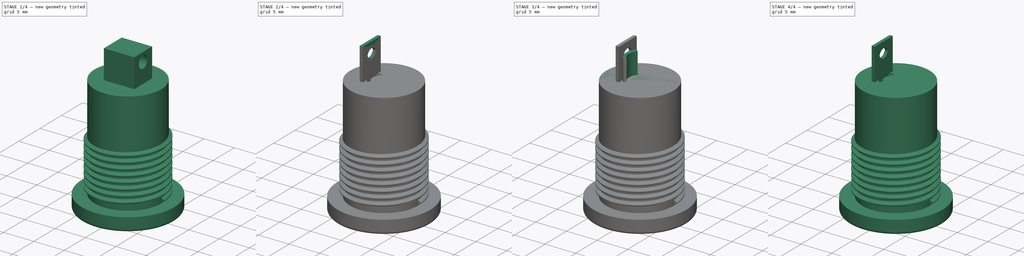
[diagram: build sequence overview — one tinted view per stage of 4, left to right]
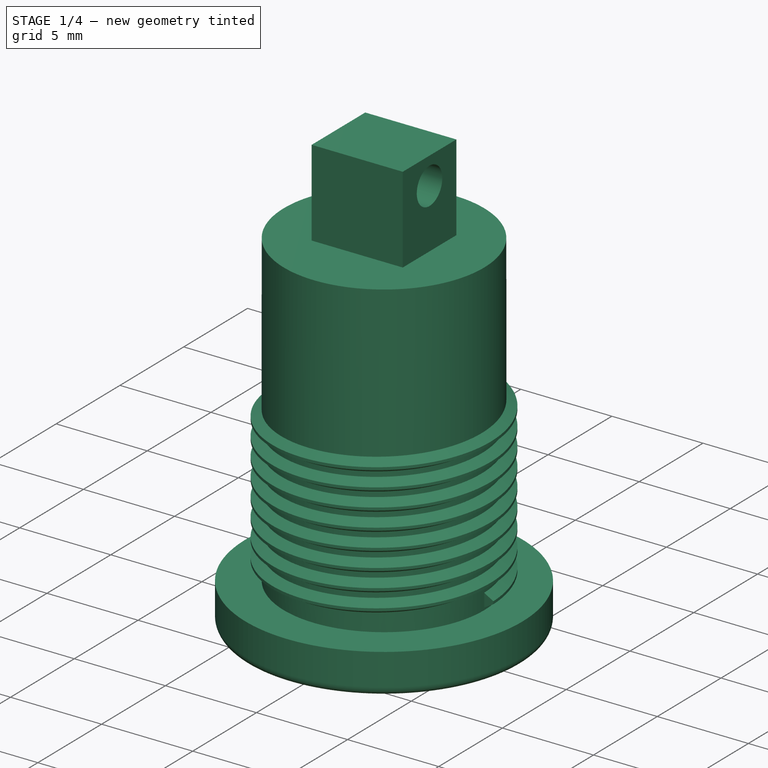
[diagram: stage 1 of 4 — iso view after this stage's code; geometry added in this stage tinted green]
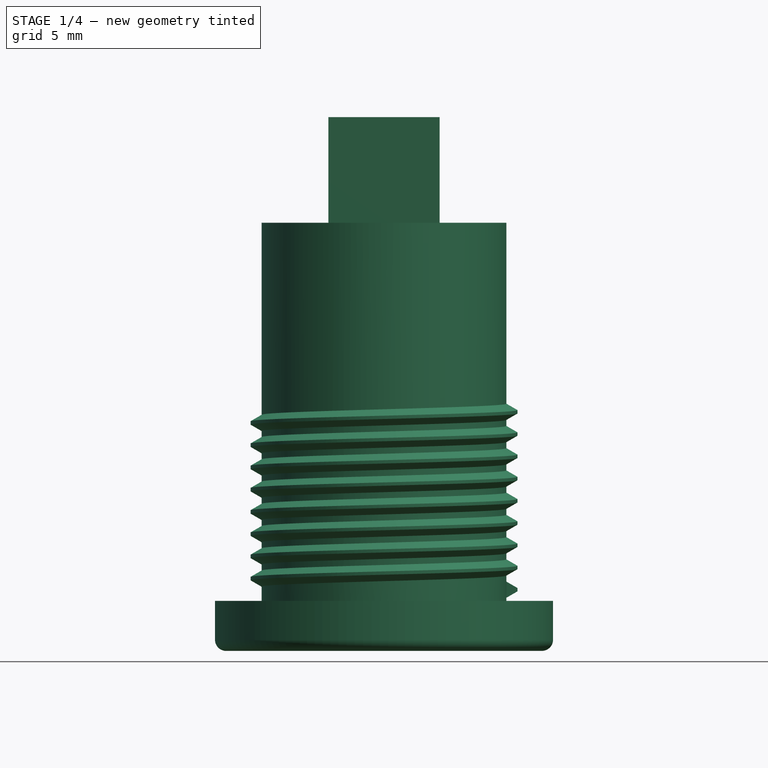
[diagram: stage 1 of 4 — front view after this stage's code; geometry added in this stage tinted green]
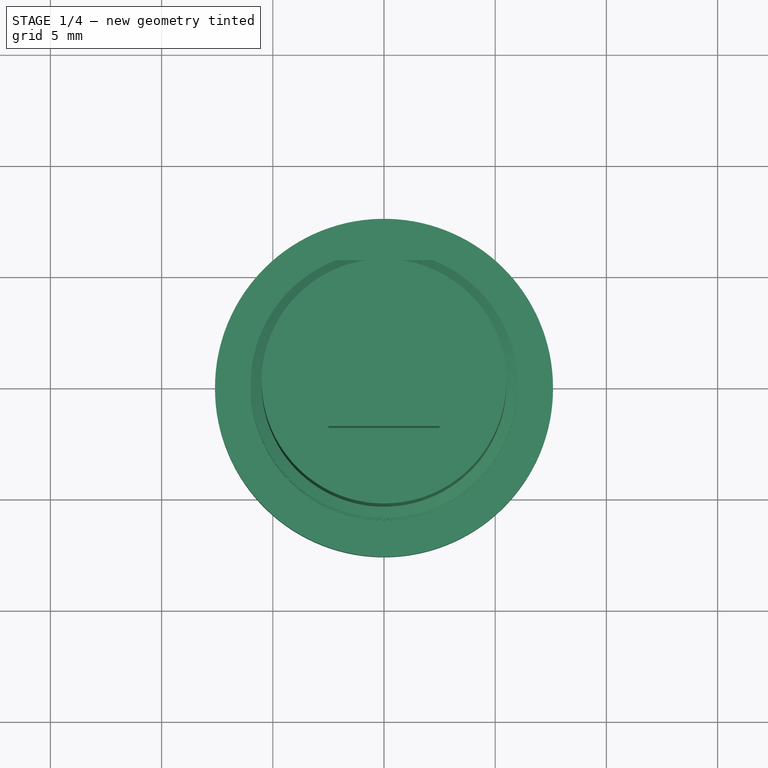
[diagram: stage 1 of 4 — top view after this stage's code; geometry added in this stage tinted green]
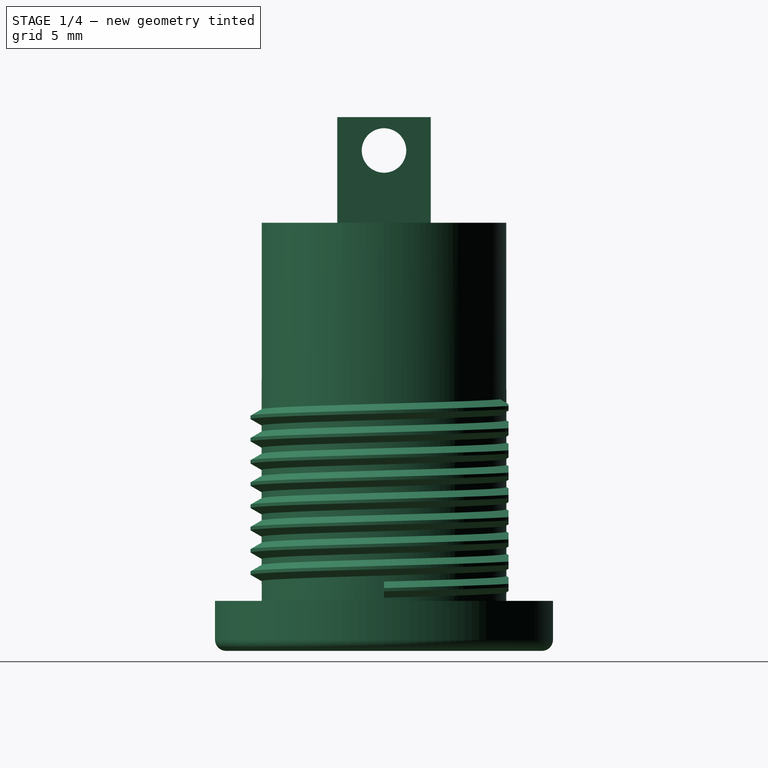
[diagram: stage 1 of 4 — right view after this stage's code; geometry added in this stage tinted green]
FCSTD DOCUMENT  (FreeCAD 0.15R4671 (Git))
Label: HBS
License: All rights reserved
LicenseURL: http://en.wikipedia.org/wiki/All_rights_reserved
objects: Sketcher::SketchObject×5, App::FeaturePython×4, Part::Cut×3, Drawing::FeatureViewPart×3, PartDesign::Revolution×2, Part::Box×2, Part::MultiFuse×2, PartDesign::Pad×2, App::DocumentObjectGroup×2, Part::Feature×2, Drawing::FeatureViewPython×2, Part::Helix×1, Part::Sweep×1, Part::Compound×1, Drawing::FeaturePage×1
note: 25 computed .brp shape members not serialized (recipe doc carries the construction recipe); baked Part::Feature solids carry a one-line shape summary decoded from their .brp

FEATURE [Sketcher::SketchObject] Sketch004
  Placement = pos=(0,0,0) rot=(0.57735,0.57735,0.57735;2.0944rad)
  sketch-geometry (9):
    g0: LineSegment StartX=1.5 StartY=15 StartZ=0 EndX=-1.5 EndY=15 EndZ=0
    g1: LineSegment StartX=-1.5 StartY=15 StartZ=0 EndX=-1.5 EndY=16 EndZ=0
    g2: LineSegment StartX=-1.5 StartY=16 StartZ=0 EndX=-2.1 EndY=16 EndZ=0
    g3: LineSegment StartX=-2.1 StartY=16 StartZ=0 EndX=-2.1 EndY=21.25 EndZ=0
    g4: LineSegment StartX=-2.1 StartY=21.25 StartZ=0 EndX=2.1 EndY=21.25 EndZ=0
    g5: LineSegment StartX=2.1 StartY=21.25 StartZ=0 EndX=2.1 EndY=16 EndZ=0
    g6: LineSegment StartX=2.1 StartY=16 StartZ=0 EndX=1.5 EndY=16 EndZ=0
    g7: LineSegment StartX=1.5 StartY=16 StartZ=0 EndX=1.5 EndY=15 EndZ=0
    g8: Circle CenterX=0 CenterY=19.75 CenterZ=0 NormalX=0 NormalY=0 NormalZ=1 Radius=1
  constraints (27):
    c: Horizontal(g0)
    c: Coincident(g0,g1)
    c: Vertical(g1)
    c: Coincident(g1,g2)
    c: Coincident(g2,g3)
    c: Vertical(g3)
    c: Coincident(g3,g4)
    c: Horizontal(g4)
    c: Coincident(g4,g5)
    c: Vertical(g5)
    c: Coincident(g5,g6)
    c: Horizontal(g6)
    c: Coincident(g6,g7)
    c: Coincident(g7,g0)
    c: DistanceY(g-1,g0) = 15
    c: Vertical(g7)
    c: PointOnObject(g8,g-2)
    c: Symmetric(g3,g4,g-2)
    c: Symmetric(g0,g0,g-2)
    c: Horizontal(g2)
    c: DistanceY(g6,g0) = -1
    c: DistanceY(g4,g5) = -5.25
    c: Equal(g3,g5)
    c: DistanceX(g3,g4) = 4.2
    c: Radius(g8) = 1
    c: DistanceY(g4,g8) = -1.5
    c: DistanceX(g0,g0) = -3
FEATURE [Sketcher::SketchObject] Sketch005
  Placement = pos=(0,0,0) rot=(1,0,0;1.5708rad)
  sketch-geometry (4):
    g0: LineSegment StartX=2 StartY=0 StartZ=0 EndX=2 EndY=15 EndZ=0
    g1: LineSegment StartX=2 StartY=15 StartZ=0 EndX=2.5 EndY=15 EndZ=0
    g2: LineSegment StartX=2.5 StartY=15 StartZ=0 EndX=2.5 EndY=0 EndZ=0
    g3: LineSegment StartX=2.5 StartY=0 StartZ=0 EndX=2 EndY=0 EndZ=0
  constraints (12):
    c: PointOnObject(g0,g-1)
    c: Vertical(g0)
    c: Coincident(g0,g1)
    c: Horizontal(g1)
    c: Coincident(g1,g2)
    c: Vertical(g2)
    c: Coincident(g2,g3)
    c: Coincident(g3,g0)
    c: Horizontal(g3)
    c: DistanceY(g1,g2) = -15
    c: DistanceX(g0,g1) = 0.5
    c: DistanceX(g-1,g0) = 2
FEATURE [PartDesign::Revolution] Revolution001  label="Tubo"
  Angle = 355
  Axis = (0,0,1)
  Base = (0,0,0)
  Placement = pos=(0,0,0) rot=(1,0,0;1.5708rad)
  ReferenceAxis = -> Sketch005 [V_Axis]
  Reversed = true
  Sketch = -> Sketch005
FEATURE [PartDesign::Pad] Pad001  label="Lengüeta"
  Length = 5
  Length2 = 100
  Midplane = true
  Placement = pos=(0,0,0) rot=(0.57735,0.57735,0.57735;2.0944rad)
  Sketch = -> Sketch004
  Type = 0
FEATURE [App::FeaturePython] Dimension  # Draft dimension (typed FeaturePython)
  Dimline = (11.8708,0,-0.669971)
  Direction = (0,0,0)
  Distance = 17
  End = (7.6,0,-0.5)
  Normal = (0,-1,0)
  Start = (7.6,0,16.5)
FEATURE [App::FeaturePython] Dimension001  # Draft dimension (typed FeaturePython)
  Dimline = (11.8696,0,-1.51157)
  Direction = (0,0,0)
  Distance = 2.25
  End = (7.6,0,-2.75)
  Normal = (0,-1,0)
  Start = (7.6,0,-0.5)
FEATURE [App::FeaturePython] Dimension002  # Draft dimension (typed FeaturePython)
  Dimline = (4.46714,1.30853e-06,21.9534)
  Direction = (0,0,0)
  Distance = 12.0065
  End = (6,-1.55762e-07,7.85564)
  Normal = (0,-1,5.9605e-08)
  Start = (-6.00647,-1.55762e-07,7.85564)
FEATURE [App::DocumentObjectGroup] Group  label="Cotas_z"
  Group = -> [Dimension,Dimension001,Dimension002]
FEATURE [Part::Feature] Cut001001  label="Cuerpo001"
  shape: bbox 17.88 x 17.56 x 19.25 mm, 71 faces (baked)
FEATURE [Part::Feature] Cut002001  label="Inserto"
  shape: bbox 5 x 5 x 21.25 mm, 19 faces (baked)
FEATURE [Part::Compound] Compound  label="Borne"
  Links = -> [Cut001001,Cut002001]
FEATURE [App::FeaturePython] Dimension003  # Draft dimension (typed FeaturePython)
  Dimline = (-3.66503,2.66715,0)
  Direction = (0,0,0)
  Distance = 4
  End = (-1.61712,1.17683,0)
  LinkedGeometry = -> [Cut002001]
  Normal = (0,0,-1)
  Start = (1.61712,-1.17683,0)
  Support = -> Cut002001
FEATURE [App::DocumentObjectGroup] Group001  label="Cota_inserto"
  Group = -> [Dimension003]
FEATURE [Drawing::FeatureViewPart] Ortho  label="Ortho_0_0"
  Direction = (0,0,1)
  HiddenWidth = 0.15
  LineWidth = 0.5
  Rotation = 0
  Scale = 2
  ShowHiddenLines = false
  ShowSmoothLines = false
  Source = -> Compound
  Tolerance = 0.05
  ViewResult = <blob: 6901 chars omitted>
  Visible = true
  X = 208.933
  Y = 50.3914
FEATURE [Drawing::FeatureViewPart] Ortho001  label="Ortho_0_-1"
  Direction = (0,-1,0)
  HiddenWidth = 0.15
  LineWidth = 0.5
  Rotation = 90
  Scale = 2
  ShowHiddenLines = false
  ShowSmoothLines = false
  Source = -> Compound
  Tolerance = 0.05
  ViewResult = <blob: 19564 chars omitted>
  Visible = true
  X = 208.933
  Y = 133.283
FEATURE [Drawing::FeatureViewPart] Ortho002  label="Ortho_-1_-1"
  Direction = (0.57735,-0.57735,-0.57735)
  HiddenWidth = 0.15
  LineWidth = 0.5
  Rotation = -60
  Scale = 2
  ShowHiddenLines = false
  ShowSmoothLines = false
  Source = -> Compound
  Tolerance = 0.05
  ViewResult = <blob: 11910 chars omitted>
  Visible = true
  X = 119.948
  Y = 107.23
FEATURE [Drawing::FeatureViewPython] ViewGroup  # drawing view (typed FeaturePython)
  Direction = (0,-1,0)
  FillStyle = 0
  FontSize = 12
  LineStyle = 0
  LineWidth = 0.35
  Rotation = 90
  Scale = 2
  Source = -> Group
  ViewResult = <blob: 3244 chars omitted>
  Visible = true
  X = 208.93
  Y = 133.28
FEATURE [Drawing::FeatureViewPython] ViewGroup001  # drawing view (typed FeaturePython)
  Direction = (0.58,-0.58,-0.58)
  FillStyle = 0
  FontSize = 12
  LineStyle = 0
  LineWidth = 0.35
  Rotation = -60
  Scale = 2
  Source = -> Group001
  ViewResult = <g id="ViewGroup001" transform="rotate(-60.0,119.95,107.23) translate(119.95,107.23) scale(2.0,-2.0)"><path d="M -1.14347707223 -0.30068793468 L -1.14347707223 -0.30068793468 L 1.14347707223 0.30068793468 L 1.14347707223 0.30068793468" fill="none" stroke="#0000ff" stroke-width="0.175 px" style="stroke-width:0.175;stroke-miterlimit:4;stroke-dasharray:none" freecad:basepoint1="-1.14347707223 -0.30068793468" freecad:basepoint2="1.14347707223 0.30068793468" freecad:dimpoint="-1.14347707223 -0.30068793468"/>\n<path transform="rotate(14.7329184638,-1.14347707223,-0.30068793468) translate(-1.14347707223,-0.30068793468) scale(0.666666666667,0.666666666667)" freecad:skip="1" fill="#0000ff" stroke="none" style="stroke-miterlimit:4;stroke-dasharray:none" d="M 0 0 L 4 1 L 4 -1 Z"/>\n<path transform="rotate(194.732918464,1.14347707223,0.30068793468) translate(1.14347707223,0.30068793468) scale(0.666666666667,0.666666666667)" freecad:skip="1" fill="#0000ff" stroke="none" style="stroke-miterlimit:4;stroke-dasharray:none" d="M 0 0 L 4 1 L 4 -1 Z"/>\n<text fill="#0000ff" font-size="3.0" style="text-anchor:middle;text-align:center;font-family:" transform="rotate(14.7329184638,-0.416070963081,0.900405478003) translate(-0.416070963081,0.900405478003) scale(1,-1) " freecad:skip="1">\nØ 4 </text>\n</g>
  Visible = true
  X = 119.95
  Y = 107.23
FEATURE [Drawing::FeaturePage] Page
  EditableTexts = Marcelo  | Marcelo | VioMar | type | HBS | 0001 | 05-02-2016
  Group = -> [Ortho,Ortho001,Ortho002,ViewGroup,ViewGroup001]
  Template = C:/Program Files/FreeCAD 0.15/data/Mod/Drawing/Templates/A4_Landscape_ISO7200.svg
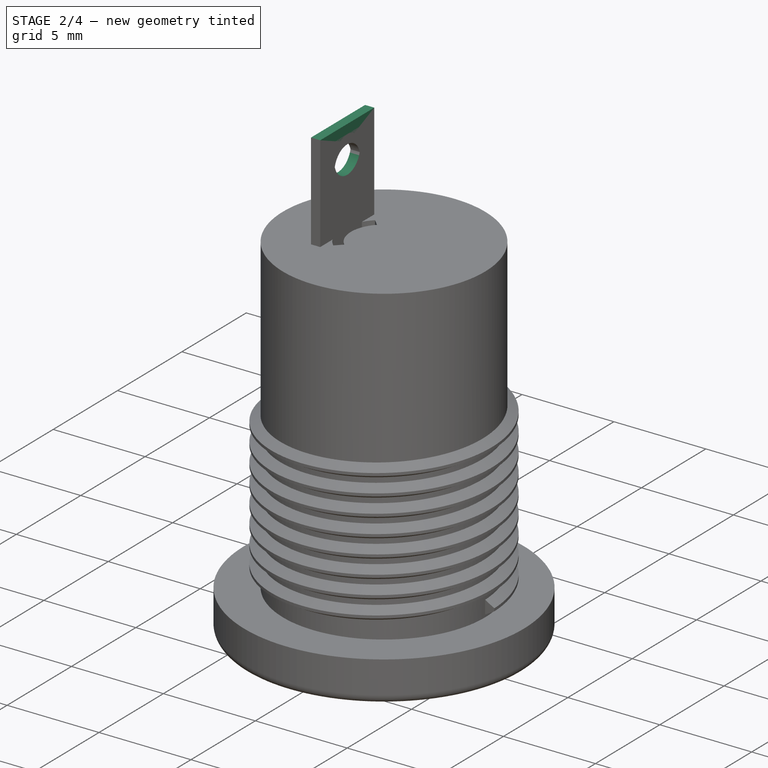
[diagram: stage 2 of 4 — iso view after this stage's code; geometry added in this stage tinted green]
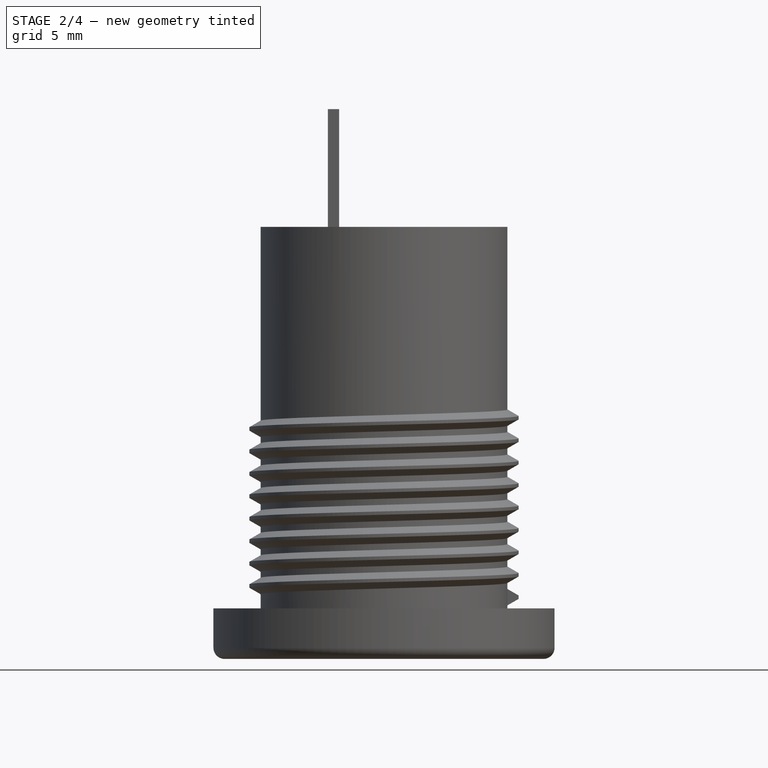
[diagram: stage 2 of 4 — front view after this stage's code; geometry added in this stage tinted green]
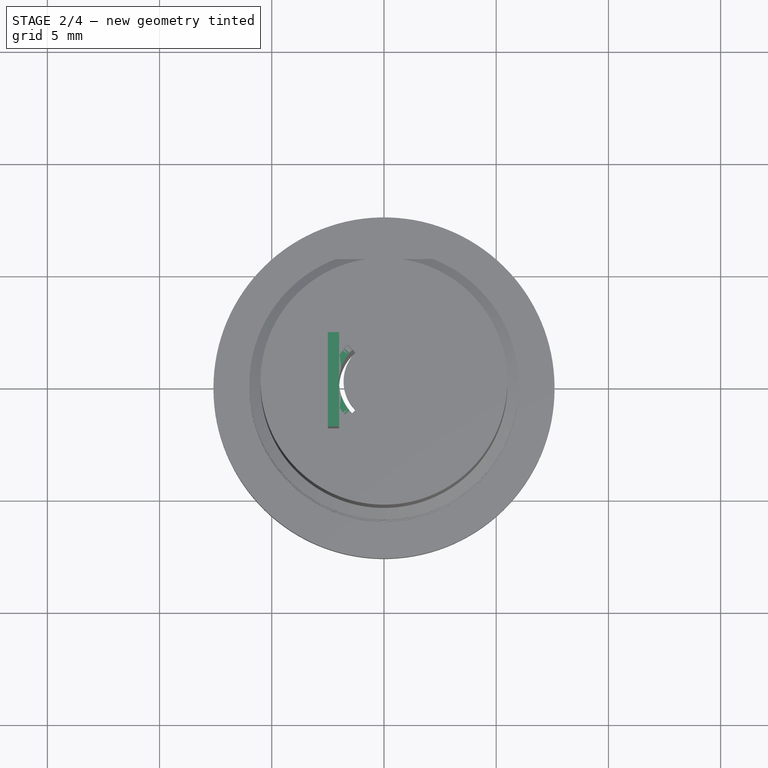
[diagram: stage 2 of 4 — top view after this stage's code; geometry added in this stage tinted green]
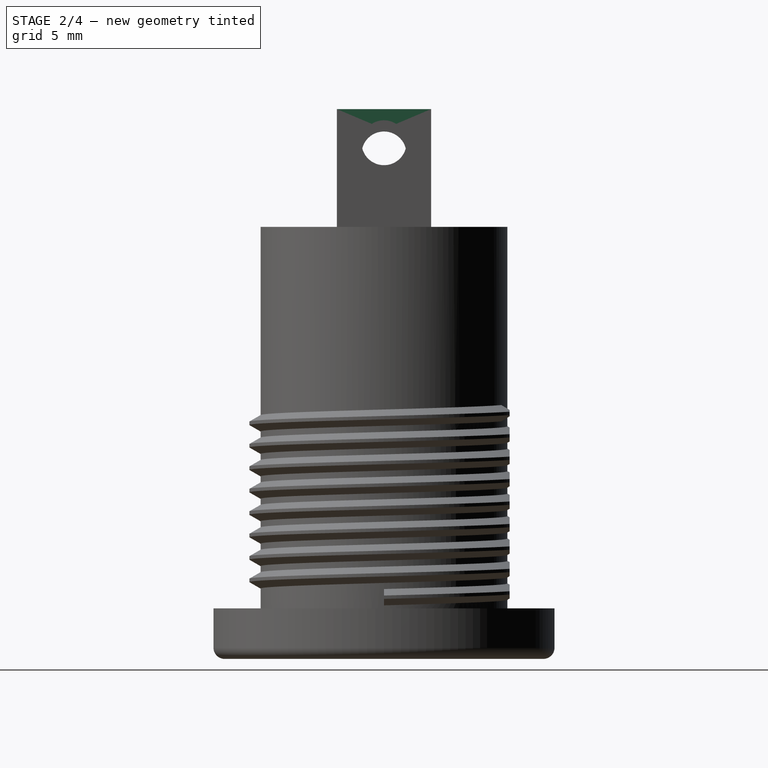
[diagram: stage 2 of 4 — right view after this stage's code; geometry added in this stage tinted green]
FEATURE [Part::Box] Box001  label="Cube001"
  Height = 10
  Length = 10
  Placement = pos=(-2,-5,15) rot=(0,0,1;0rad)
  Width = 10
FEATURE [Part::MultiFuse] Fusion001
  Shapes = -> [Revolution001,Pad001]
FEATURE [Part::Cut] Cut002
  Base = -> Fusion001
  Placement = pos=(0,0,0.5) rot=(0,0,1;0rad)
  Tool = -> Box001
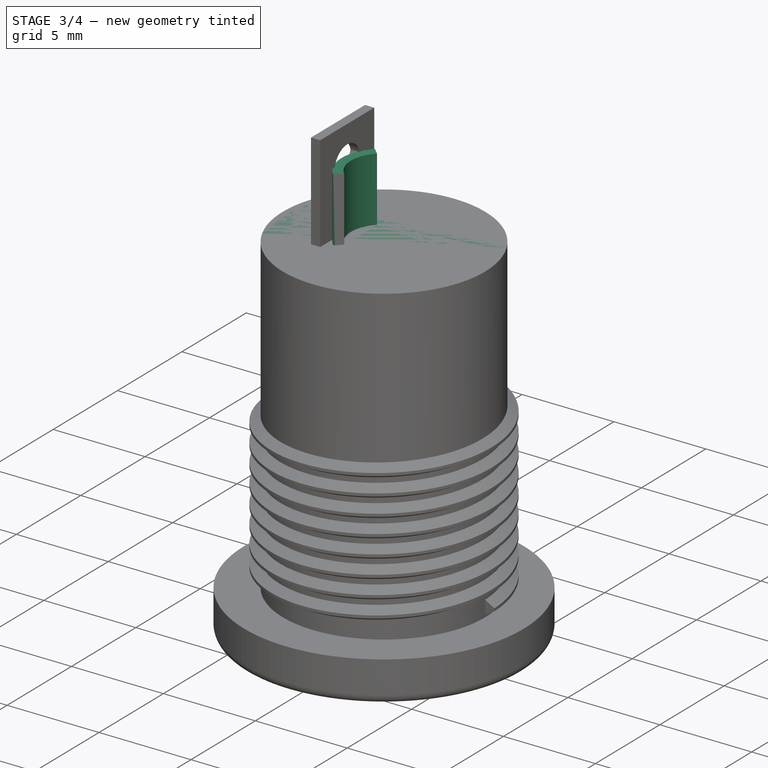
[diagram: stage 3 of 4 — iso view after this stage's code; geometry added in this stage tinted green]
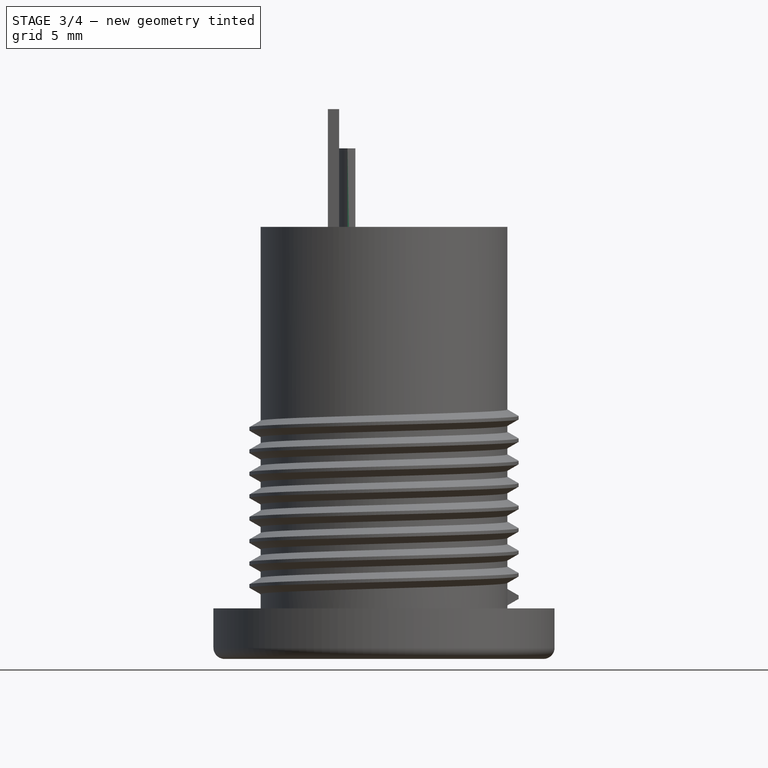
[diagram: stage 3 of 4 — front view after this stage's code; geometry added in this stage tinted green]
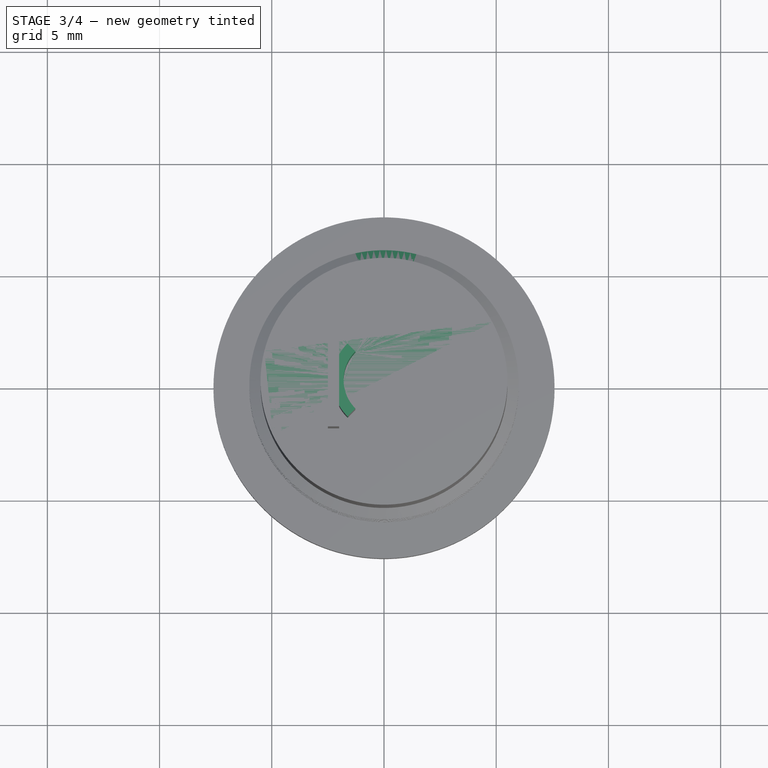
[diagram: stage 3 of 4 — top view after this stage's code; geometry added in this stage tinted green]
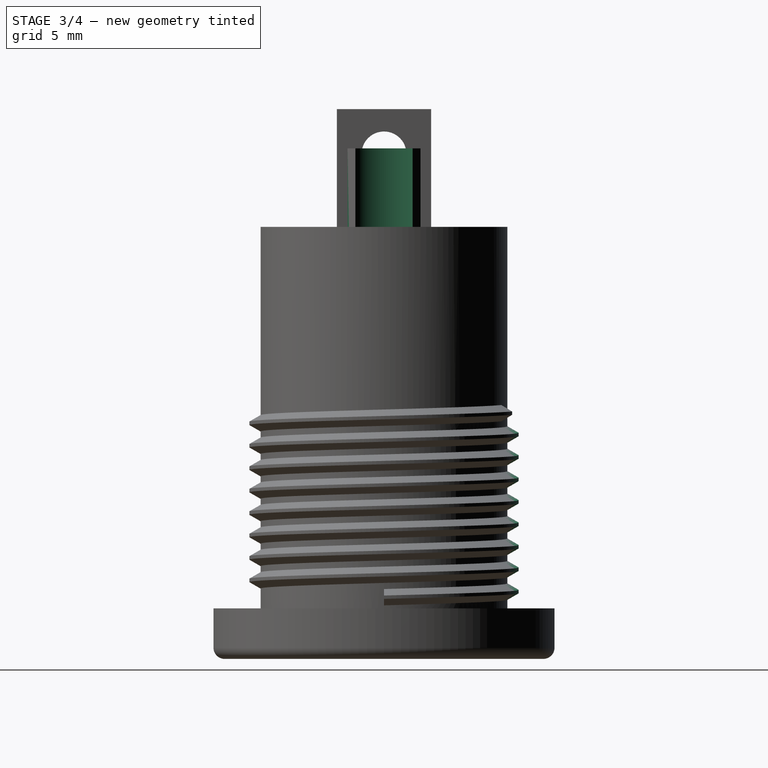
[diagram: stage 3 of 4 — right view after this stage's code; geometry added in this stage tinted green]
FEATURE [Part::Helix] Helix
  Angle = 0
  Height = 8.2
  LocalCoord = 0
  Pitch = 1
  Radius = 5.5
  Style = 1
FEATURE [Sketcher::SketchObject] Sketch
  Placement = pos=(0,0,0) rot=(1,0,0;1.5708rad)
  sketch-geometry (5):
    g0: LineSegment [constr] StartX=6.13 StartY=0 StartZ=0 EndX=5.05 EndY=0.623538 EndZ=0
    g1: LineSegment StartX=5.32 StartY=0.467654 StartZ=0 EndX=5.32 EndY=-0.467654 EndZ=0
    g2: LineSegment StartX=5.32 StartY=-0.467654 StartZ=0 EndX=6 EndY=-0.0750555 EndZ=0
    g3: LineSegment StartX=6 StartY=-0.0750555 StartZ=0 EndX=6 EndY=0.0750555 EndZ=0
    g4: LineSegment StartX=5.32 StartY=0.467654 StartZ=0 EndX=6 EndY=0.0750555 EndZ=0
  constraints (16):
    c: PointOnObject(g0,g-1)
    c: PointOnObject(g1,g0)
    c: Vertical(g1)
    c: Coincident(g1,g2)
    c: Coincident(g2,g3)
    c: Vertical(g3)
    c: Angle(g-1,g0) = 2.61799
    c: PointOnObject(g3,g0)
    c: Symmetric(g1,g1,g-1)
    c: Symmetric(g3,g2,g-1)
    c: DistanceX(g-1,g0) = 6.13
    c: DistanceX(g-1,g3) = 6
    c: DistanceX(g-1,g1) = 5.32
    c: DistanceX(g-1,g0) = 5.05
    c: Coincident(g4,g1)
    c: Coincident(g4,g3)
FEATURE [Part::Sweep] Sweep  label="Rosca"
  Frenet = true
  Sections = -> [Sketch]
  Solid = true
  Spine = -> Helix [Edge1,Edge2,Edge3,Edge4,Edge5,Edge6,Edge7,Edge8,Edge9]
  Transition = 1
FEATURE [Sketcher::SketchObject] Sketch001
  Placement = pos=(0,0,0) rot=(1,0,0;1.5708rad)
  sketch-geometry (13):
    g0: LineSegment StartX=0 StartY=16.5 StartZ=0 EndX=5.5 EndY=16.5 EndZ=0
    g1: LineSegment StartX=5.5 StartY=16.5 StartZ=0 EndX=5.5 EndY=-0.5 EndZ=0
    g2: LineSegment StartX=5.5 StartY=-0.5 StartZ=0 EndX=7.6 EndY=-0.5 EndZ=0
    g3: LineSegment StartX=7.6 StartY=-0.5 StartZ=0 EndX=7.6 EndY=-2.25 EndZ=0
    g4: LineSegment StartX=7.1 StartY=-2.75 StartZ=0 EndX=4.45 EndY=-2.75 EndZ=0
    g5: LineSegment StartX=4.45 StartY=-2.75 StartZ=0 EndX=4.45 EndY=14.25 EndZ=0
    g6: LineSegment StartX=4.45 StartY=14.25 StartZ=0 EndX=3.05 EndY=14.25 EndZ=0
    g7: LineSegment StartX=3.05 StartY=14.25 StartZ=0 EndX=3.05 EndY=-2.75 EndZ=0
    g8: LineSegment StartX=3.05 StartY=-2.75 StartZ=0 EndX=2.3 EndY=-2.75 EndZ=0
    g9: LineSegment StartX=2.3 StartY=-2.75 StartZ=0 EndX=2.3 EndY=15.35 EndZ=0
    g10: LineSegment StartX=2.3 StartY=15.35 StartZ=0 EndX=0 EndY=15.35 EndZ=0
    g11: ArcOfCircle CenterX=7.1 CenterY=-2.25 CenterZ=0 NormalX=0 NormalY=0 NormalZ=1 Radius=0.5 StartAngle=4.71239 EndAngle=6.28319
    g12: LineSegment StartX=0 StartY=16.5 StartZ=0 EndX=0 EndY=15.35 EndZ=0
  constraints (38):
    c: PointOnObject(g0,g-2)
    c: Horizontal(g0)
    c: Coincident(g0,g1)
    c: Vertical(g1)
    c: Coincident(g1,g2)
    c: Horizontal(g2)
    c: Coincident(g2,g3)
    c: Horizontal(g4)
    c: Coincident(g4,g5)
    c: Vertical(g5)
    c: Coincident(g5,g6)
    c: Coincident(g6,g7)
    c: Vertical(g7)
    c: Coincident(g7,g8)
    c: Horizontal(g8)
    c: Coincident(g8,g9)
    c: Vertical(g9)
    c: Coincident(g9,g10)
    c: Horizontal(g10)
    c: PointOnObject(g10,g-2)
    c: DistanceX(g0,g0) = 5.5
    c: DistanceY(g0,g2) = -17
    c: Vertical(g3)
    c: DistanceX(g-1,g4) = 4.45
    c: DistanceX(g8) = -0.75
    c: Horizontal(g6)
    c: DistanceX(g6) = -1.4
    c: DistanceY(g9,g7) = -18.1
    c: DistanceY(g-1,g2) = -0.5
    c: DistanceY(g-1,g7) = -2.75
    c: Tangent(g3,g11) = 1.5708
    c: Tangent(g4,g11) = 1.5708
    c: Radius(g11) = 0.5
    c: DistanceX(g-1,g3) = 7.6
    c: DistanceY(g-1,g4) = -2.75
    c: DistanceY(g4,g5) = 17
    c: Coincident(g12,g0)
    c: Coincident(g12,g10)
FEATURE [PartDesign::Revolution] Revolution  label="Cuerpo"
  Angle = 360
  Axis = (0,0,1)
  Base = (0,0,0)
  Placement = pos=(0,0,0) rot=(1,0,0;1.5708rad)
  ReferenceAxis = -> Sketch001 [V_Axis]
  Reversed = true
  Sketch = -> Sketch001
FEATURE [Part::MultiFuse] Fusion
  Shapes = -> [Sweep,Revolution]
FEATURE [Sketcher::SketchObject] Sketch002
  sketch-geometry (4):
    g0: ArcOfCircle CenterX=0 CenterY=0 CenterZ=0 NormalX=0 NormalY=0 NormalZ=1 Radius=2.3 StartAngle=2.35619 EndAngle=3.92699
    g1: ArcOfCircle CenterX=0 CenterY=0 CenterZ=0 NormalX=0 NormalY=0 NormalZ=1 Radius=1.8 StartAngle=2.35619 EndAngle=3.92699
    g2: LineSegment StartX=-1.62635 StartY=1.62635 StartZ=0 EndX=-1.27279 EndY=1.27279 EndZ=0
    g3: LineSegment StartX=-1.62635 StartY=-1.62635 StartZ=0 EndX=-1.27279 EndY=-1.27279 EndZ=0
  constraints (12):
    c: Coincident(g0,g-1)
    c: Coincident(g1,g-1)
    c: Coincident(g2,g0)
    c: Coincident(g2,g1)
    c: Coincident(g3,g0)
    c: Coincident(g3,g1)
    c: Perpendicular(g0,g2)
    c: Perpendicular(g0,g3)
    c: Symmetric(g1,g1,g-1)
    c: Angle(g0) = 1.5708
    c: Radius(g0) = 2.3
    c: Radius(g1) = 1.8
FEATURE [PartDesign::Pad] Pad  label="Arco Inserción"
  Length = 20
  Length2 = 100
  Sketch = -> Sketch002
  Type = 0
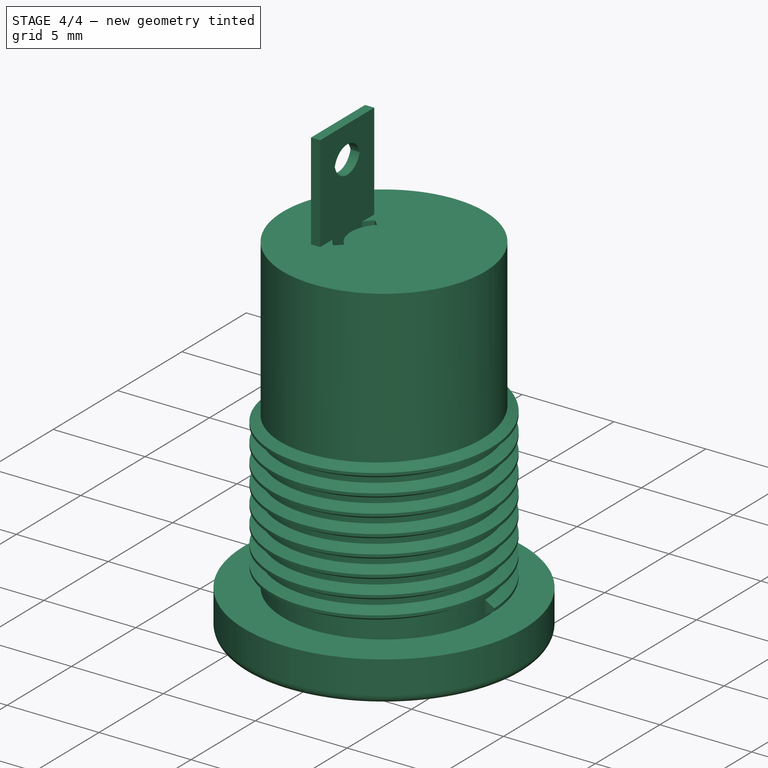
[diagram: stage 4 of 4 — iso view after this stage's code; geometry added in this stage tinted green]
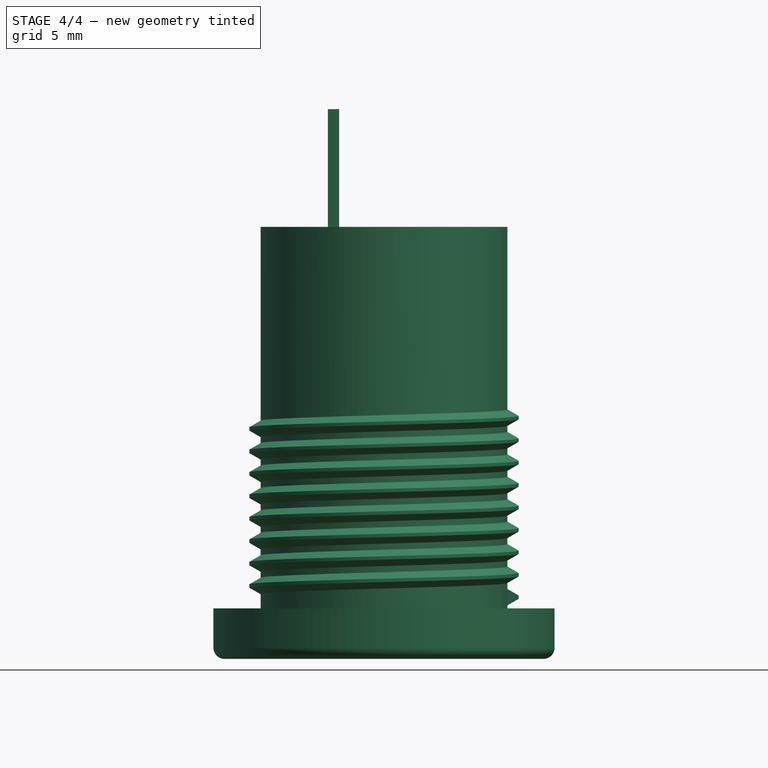
[diagram: stage 4 of 4 — front view after this stage's code; geometry added in this stage tinted green]
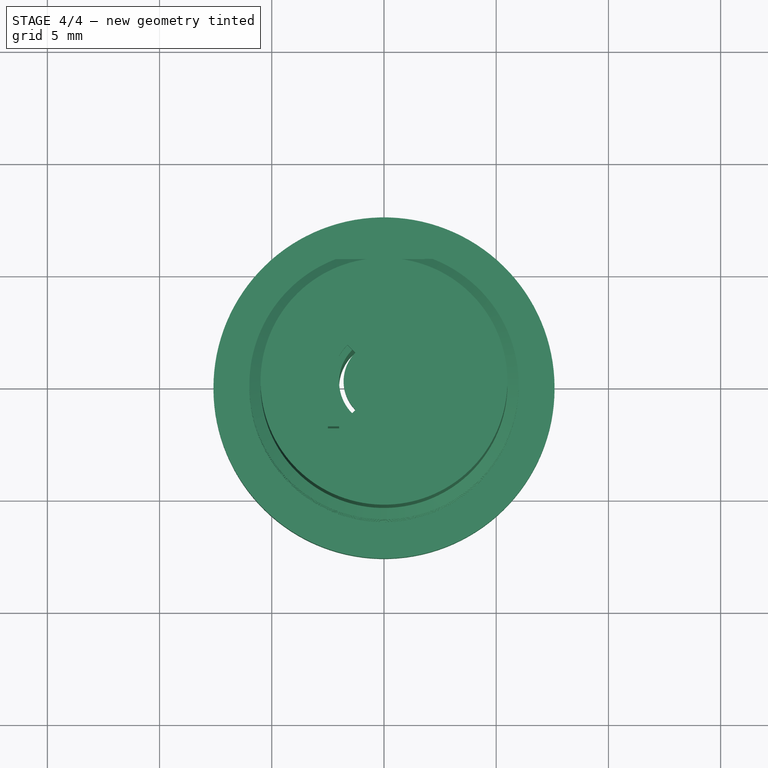
[diagram: stage 4 of 4 — top view after this stage's code; geometry added in this stage tinted green]
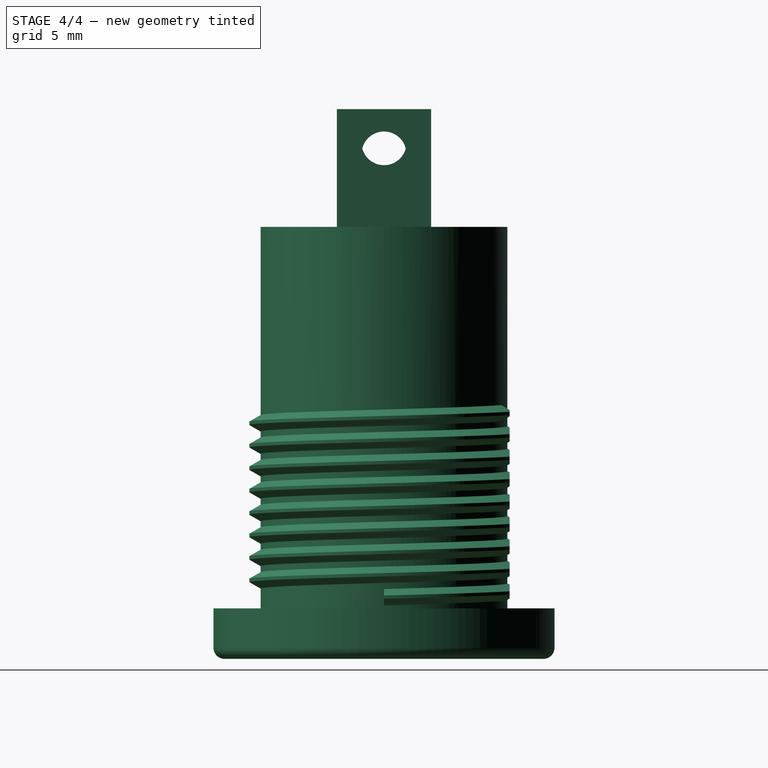
[diagram: stage 4 of 4 — right view after this stage's code; geometry added in this stage tinted green]
FEATURE [Part::Box] Box  label="Cube"
  Height = 10
  Length = 10
  Placement = pos=(-5,5.6,-0.4) rot=(0,0,1;0rad)
  Width = 10
FEATURE [Part::Cut] Cut
  Base = -> Fusion
  Tool = -> Box
FEATURE [Part::Cut] Cut001
  Base = -> Cut
  Tool = -> Pad
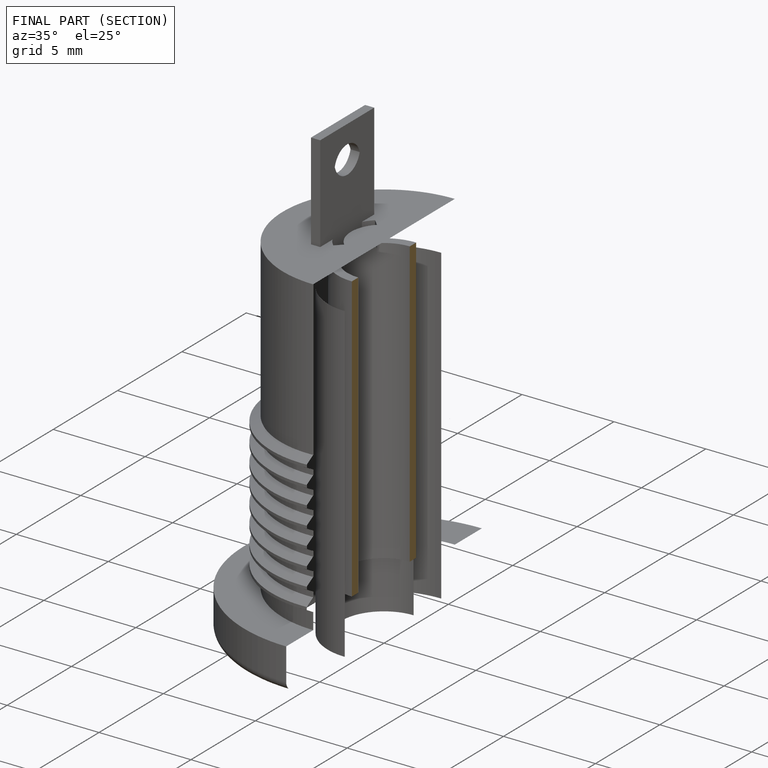
[diagram: finished part — half-section view (interior)]
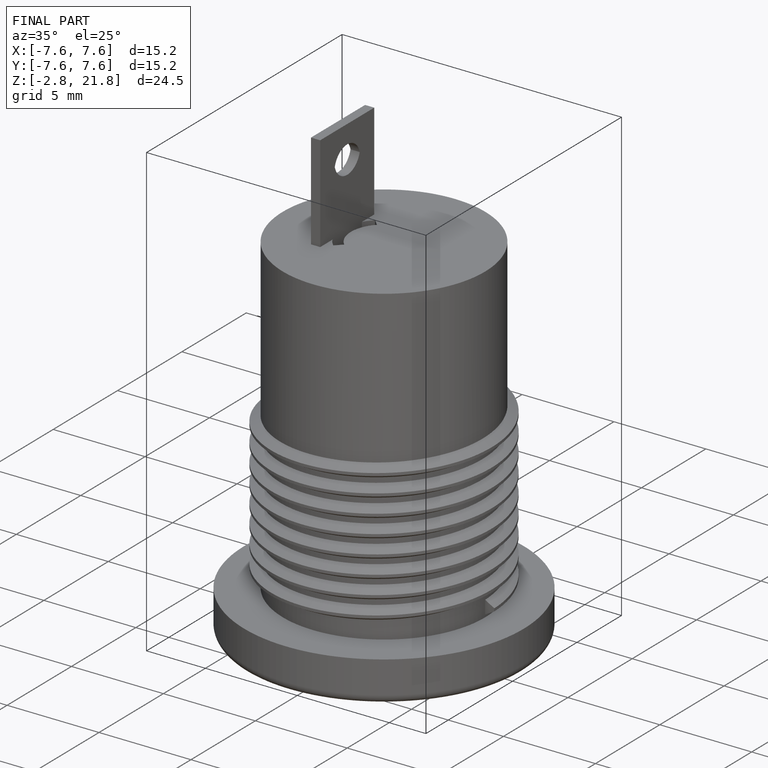
[diagram: finished part — iso view with bounding-box wireframe]
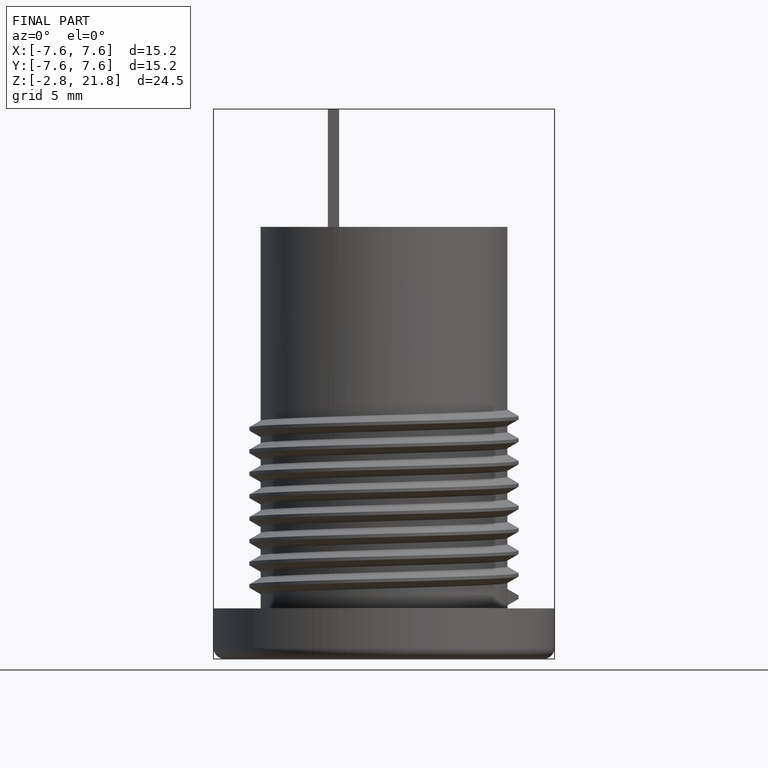
[diagram: finished part — front view with bounding-box wireframe]
